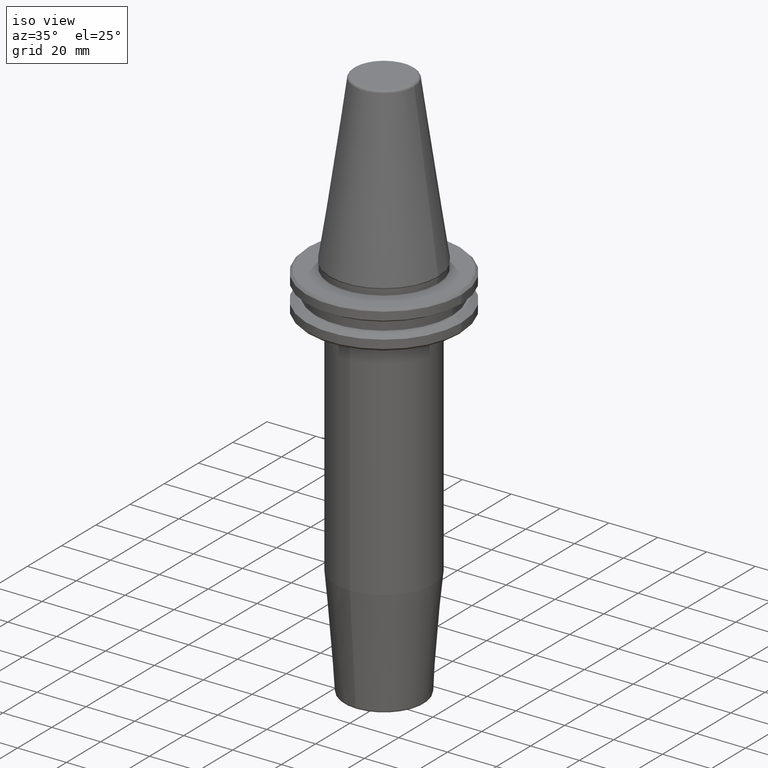
[diagram: clean part render]
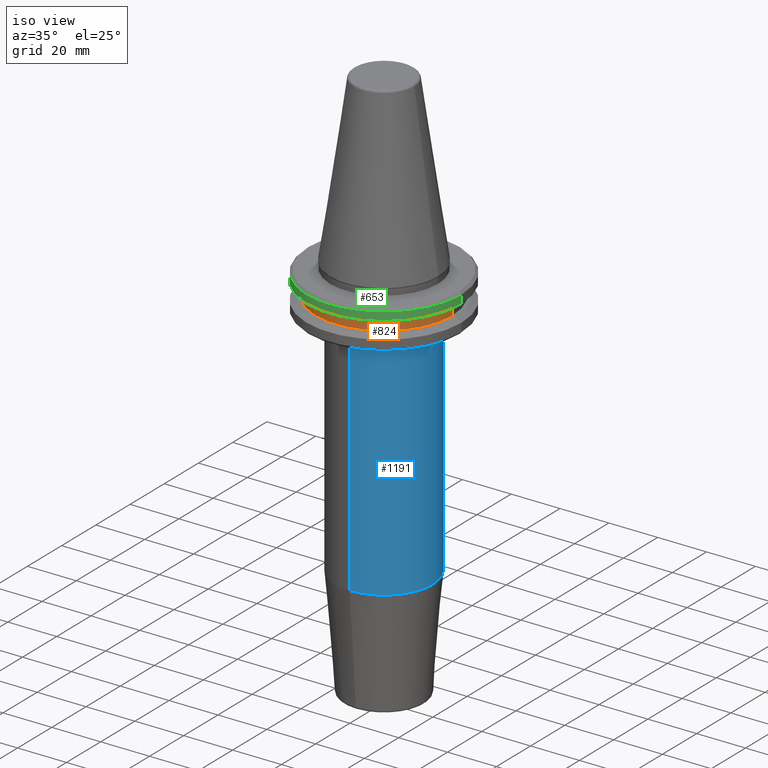
[diagram: same view with three faces highlighted in distinct colors, each labeled with its STEP entity id]
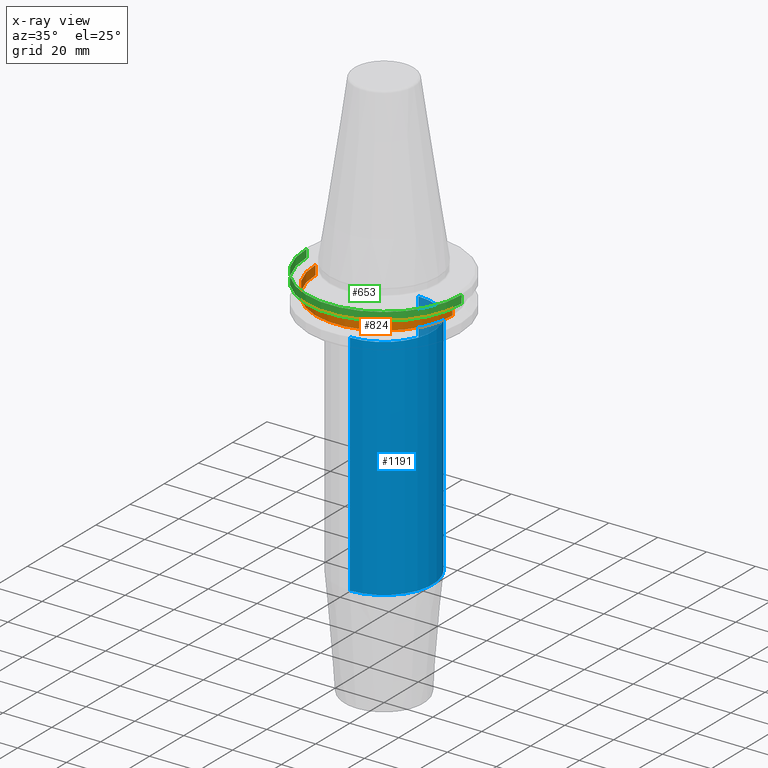
[diagram: x-ray of the same camera — body ghosted, the three highlighted faces saturated]
A machine part, iso view with three faces highlighted in distinct colors.
The next image is the same camera in x-ray (body ghosted, the three faces saturated) — at least one of them is partly hidden behind the body in this view.
Their STEP definitions:

[orange] entity #824 — the highlighted cylindrical surface (partial cylindrical patch) has radius 28 mm, axis along (-0, -0, 1).
#13 = ORIENTED_EDGE ( 'NONE', *, *, #398, .T. ) ;
#14 = ORIENTED_EDGE ( 'NONE', *, *, #101, .T. ) ;
#21 = DIRECTION ( 'NONE',  ( 1.000000000000000000, 0.0000000000000000000, 0.0000000000000000000 ) ) ;
#86 = CIRCLE ( 'NONE', #267, 28.00000000000000000 ) ;
#101 = EDGE_CURVE ( 'NONE', #382, #507, #604, .T. ) ;
#125 = DIRECTION ( 'NONE',  ( -0.0000000000000000000, -0.0000000000000000000, 1.000000000000000000 ) ) ;
#146 = CARTESIAN_POINT ( 'NONE',  ( 0.0000000000000000000, 0.0000000000000000000, -13.00000000000001100 ) ) ;
#149 = FACE_OUTER_BOUND ( 'NONE', #316, .T. ) ;
#208 = CARTESIAN_POINT ( 'NONE',  ( 0.0000000000000000000, 0.0000000000000000000, 113.5216080541959500 ) ) ;
#214 = CARTESIAN_POINT ( 'NONE',  ( -28.00000000000000000, 3.429011037612589300E-015, 113.5216080541959500 ) ) ;
#230 = DIRECTION ( 'NONE',  ( -0.0000000000000000000, -0.0000000000000000000, 1.000000000000000000 ) ) ;
#267 = AXIS2_PLACEMENT_3D ( 'NONE', #1188, #1171, #897 ) ;
#270 = CARTESIAN_POINT ( 'NONE',  ( -28.00000000000000000, 3.429011037612589300E-015, -9.199999999999999300 ) ) ;
#275 = LINE ( 'NONE', #353, #562 ) ;
#289 = ORIENTED_EDGE ( 'NONE', *, *, #819, .F. ) ;
#316 = EDGE_LOOP ( 'NONE', ( #289, #14, #13, #455 ) ) ;
#353 = CARTESIAN_POINT ( 'NONE',  ( 28.00000000000000000, 0.0000000000000000000, 113.5216080541959500 ) ) ;
#382 = VERTEX_POINT ( 'NONE', #1112 ) ;
#398 = EDGE_CURVE ( 'NONE', #507, #1119, #275, .T. ) ;
#455 = ORIENTED_EDGE ( 'NONE', *, *, #844, .F. ) ;
#466 = CARTESIAN_POINT ( 'NONE',  ( 28.00000000000000000, 0.0000000000000000000, -9.199999999999999300 ) ) ;
#467 = DIRECTION ( 'NONE',  ( 1.000000000000000000, 0.0000000000000000000, 0.0000000000000000000 ) ) ;
#507 = VERTEX_POINT ( 'NONE', #960 ) ;
#562 = VECTOR ( 'NONE', #751, 1000.000000000000000 ) ;
#604 = CIRCLE ( 'NONE', #814, 28.00000000000000000 ) ;
#654 = VECTOR ( 'NONE', #230, 1000.000000000000000 ) ;
#751 = DIRECTION ( 'NONE',  ( -0.0000000000000000000, -0.0000000000000000000, 1.000000000000000000 ) ) ;
#814 = AXIS2_PLACEMENT_3D ( 'NONE', #146, #1043, #467 ) ;
#819 = EDGE_CURVE ( 'NONE', #382, #877, #891, .T. ) ;
#824 = ADVANCED_FACE ( 'NONE', ( #149 ), #1105, .T. ) ;
#844 = EDGE_CURVE ( 'NONE', #877, #1119, #86, .T. ) ;
#877 = VERTEX_POINT ( 'NONE', #270 ) ;
#891 = LINE ( 'NONE', #214, #654 ) ;
#897 = DIRECTION ( 'NONE',  ( 1.000000000000000000, 0.0000000000000000000, 0.0000000000000000000 ) ) ;
#960 = CARTESIAN_POINT ( 'NONE',  ( 28.00000000000000000, 0.0000000000000000000, -13.00000000000001100 ) ) ;
#982 = AXIS2_PLACEMENT_3D ( 'NONE', #208, #125, #21 ) ;
#1043 = DIRECTION ( 'NONE',  ( -0.0000000000000000000, -0.0000000000000000000, 1.000000000000000000 ) ) ;
#1105 = CYLINDRICAL_SURFACE ( 'NONE', #982, 28.00000000000000000 ) ;
#1112 = CARTESIAN_POINT ( 'NONE',  ( -28.00000000000000000, 3.429011037612589300E-015, -13.00000000000001100 ) ) ;
#1119 = VERTEX_POINT ( 'NONE', #466 ) ;
#1171 = DIRECTION ( 'NONE',  ( -0.0000000000000000000, -0.0000000000000000000, 1.000000000000000000 ) ) ;
#1188 = CARTESIAN_POINT ( 'NONE',  ( 0.0000000000000000000, 0.0000000000000000000, -9.199999999999999300 ) ) ;

[blue] entity #1191 — the highlighted cylindrical surface (partial cylindrical patch) has radius 20 mm, axis along (-0, 0, -1).
#7 = CIRCLE ( 'NONE', #1054, 20.00000000000000700 ) ;
#39 = CARTESIAN_POINT ( 'NONE',  ( 0.0000000000000000000, 20.00000000000001100, -160.0000000000000000 ) ) ;
#46 = DIRECTION ( 'NONE',  ( 0.0000000000000000000, 1.000000000000000000, 1.734723475976805900E-016 ) ) ;
#82 = EDGE_CURVE ( 'NONE', #831, #1113, #104, .T. ) ;
#104 = CIRCLE ( 'NONE', #783, 20.00000000000001400 ) ;
#111 = CARTESIAN_POINT ( 'NONE',  ( 0.0000000000000000000, 19.99999999999999600, -20.98284271247460400 ) ) ;
#159 = CARTESIAN_POINT ( 'NONE',  ( 2.449293598294707700E-015, 20.00000000000000400, -114.6067425191115800 ) ) ;
#160 = EDGE_CURVE ( 'NONE', #808, #812, #7, .T. ) ;
#162 = FACE_OUTER_BOUND ( 'NONE', #1078, .T. ) ;
#164 = DIRECTION ( 'NONE',  ( -0.0000000000000000000, 1.256330602389183300E-016, -1.000000000000000000 ) ) ;
#262 = CARTESIAN_POINT ( 'NONE',  ( 0.0000000000000000000, -1.701835490922485000E-014, -20.98284271247460700 ) ) ;
#266 = DIRECTION ( 'NONE',  ( -0.0000000000000000000, 1.256330602389183300E-016, -1.000000000000000000 ) ) ;
#381 = ORIENTED_EDGE ( 'NONE', *, *, #1057, .T. ) ;
#384 = EDGE_CURVE ( 'NONE', #831, #808, #801, .T. ) ;
#450 = DIRECTION ( 'NONE',  ( -0.0000000000000000000, 1.256330602389183300E-016, -1.000000000000000000 ) ) ;
#529 = CARTESIAN_POINT ( 'NONE',  ( 0.0000000000000000000, -20.00000000000001400, -114.6067425191115800 ) ) ;
#537 = VECTOR ( 'NONE', #450, 1000.000000000000000 ) ;
#558 = LINE ( 'NONE', #1151, #1256 ) ;
#571 = ORIENTED_EDGE ( 'NONE', *, *, #384, .F. ) ;
#591 = ORIENTED_EDGE ( 'NONE', *, *, #160, .F. ) ;
#685 = ORIENTED_EDGE ( 'NONE', *, *, #82, .T. ) ;
#702 = DIRECTION ( 'NONE',  ( -0.0000000000000000000, 1.256330602389183300E-016, -1.000000000000000000 ) ) ;
#778 = CARTESIAN_POINT ( 'NONE',  ( 0.0000000000000000000, -5.256097865015172100E-015, -114.6067425191115800 ) ) ;
#783 = AXIS2_PLACEMENT_3D ( 'NONE', #262, #266, #46 ) ;
#801 = LINE ( 'NONE', #39, #537 ) ;
#808 = VERTEX_POINT ( 'NONE', #159 ) ;
#812 = VERTEX_POINT ( 'NONE', #529 ) ;
#813 = CARTESIAN_POINT ( 'NONE',  ( 2.449293598294709300E-015, -20.00000000000003600, -20.98284271247461100 ) ) ;
#831 = VERTEX_POINT ( 'NONE', #111 ) ;
#870 = DIRECTION ( 'NONE',  ( 0.0000000000000000000, 1.000000000000000000, 0.0000000000000000000 ) ) ;
#1024 = DIRECTION ( 'NONE',  ( -0.0000000000000000000, 1.256330602389183300E-016, -1.000000000000000000 ) ) ;
#1054 = AXIS2_PLACEMENT_3D ( 'NONE', #778, #164, #870 ) ;
#1057 = EDGE_CURVE ( 'NONE', #1113, #812, #558, .T. ) ;
#1078 = EDGE_LOOP ( 'NONE', ( #685, #381, #591, #571 ) ) ;
#1113 = VERTEX_POINT ( 'NONE', #813 ) ;
#1146 = CYLINDRICAL_SURFACE ( 'NONE', #1249, 20.00000000000001100 ) ;
#1151 = CARTESIAN_POINT ( 'NONE',  ( 2.449293598294708100E-015, -20.00000000000001100, -160.0000000000000000 ) ) ;
#1191 = ADVANCED_FACE ( 'NONE', ( #162 ), #1146, .T. ) ;
#1222 = CARTESIAN_POINT ( 'NONE',  ( 0.0000000000000000000, 4.467959865220142400E-016, -160.0000000000000000 ) ) ;
#1225 = DIRECTION ( 'NONE',  ( 0.0000000000000000000, 1.000000000000000000, 0.0000000000000000000 ) ) ;
#1249 = AXIS2_PLACEMENT_3D ( 'NONE', #1222, #1024, #1225 ) ;
#1256 = VECTOR ( 'NONE', #702, 1000.000000000000000 ) ;

[green] entity #653 — the highlighted cylindrical surface (partial cylindrical patch) has radius 31.75 mm, axis along (-0, -0, 1).
#11 = EDGE_CURVE ( 'NONE', #847, #526, #731, .T. ) ;
#22 = VECTOR ( 'NONE', #547, 1000.000000000000000 ) ;
#41 = DIRECTION ( 'NONE',  ( 1.000000000000000000, 0.0000000000000000000, 0.0000000000000000000 ) ) ;
#178 = DIRECTION ( 'NONE',  ( -0.0000000000000000000, -0.0000000000000000000, 1.000000000000000000 ) ) ;
#245 = CARTESIAN_POINT ( 'NONE',  ( 0.0000000000000000000, 0.0000000000000000000, -7.578163357943284800 ) ) ;
#250 = DIRECTION ( 'NONE',  ( -0.0000000000000000000, -0.0000000000000000000, 1.000000000000000000 ) ) ;
#256 = DIRECTION ( 'NONE',  ( 1.000000000000000000, 0.0000000000000000000, 0.0000000000000000000 ) ) ;
#258 = CARTESIAN_POINT ( 'NONE',  ( 31.75000000000000000, 0.0000000000000000000, 113.5216080541959500 ) ) ;
#302 = LINE ( 'NONE', #258, #22 ) ;
#320 = CARTESIAN_POINT ( 'NONE',  ( -31.75000000000000000, 3.888253587292846500E-015, 113.5216080541959500 ) ) ;
#341 = CARTESIAN_POINT ( 'NONE',  ( 0.0000000000000000000, 0.0000000000000000000, -4.365685424949250000 ) ) ;
#350 = FACE_OUTER_BOUND ( 'NONE', #1204, .T. ) ;
#368 = EDGE_CURVE ( 'NONE', #715, #893, #302, .T. ) ;
#394 = CARTESIAN_POINT ( 'NONE',  ( -31.75000000000000000, 3.888253587292846500E-015, -7.578163357943284800 ) ) ;
#417 = AXIS2_PLACEMENT_3D ( 'NONE', #341, #746, #41 ) ;
#526 = VERTEX_POINT ( 'NONE', #570 ) ;
#528 = ORIENTED_EDGE ( 'NONE', *, *, #368, .T. ) ;
#547 = DIRECTION ( 'NONE',  ( -0.0000000000000000000, -0.0000000000000000000, 1.000000000000000000 ) ) ;
#570 = CARTESIAN_POINT ( 'NONE',  ( -31.75000000000000000, 3.888253587292846500E-015, -4.365685424949250000 ) ) ;
#653 = ADVANCED_FACE ( 'NONE', ( #350 ), #1217, .T. ) ;
#708 = EDGE_CURVE ( 'NONE', #847, #715, #978, .T. ) ;
#715 = VERTEX_POINT ( 'NONE', #833 ) ;
#730 = CARTESIAN_POINT ( 'NONE',  ( 0.0000000000000000000, 0.0000000000000000000, 113.5216080541959500 ) ) ;
#731 = LINE ( 'NONE', #320, #1200 ) ;
#746 = DIRECTION ( 'NONE',  ( -0.0000000000000000000, -0.0000000000000000000, 1.000000000000000000 ) ) ;
#759 = CARTESIAN_POINT ( 'NONE',  ( 31.75000000000000000, 0.0000000000000000000, -4.365685424949250000 ) ) ;
#791 = ORIENTED_EDGE ( 'NONE', *, *, #708, .T. ) ;
#833 = CARTESIAN_POINT ( 'NONE',  ( 31.75000000000000000, 0.0000000000000000000, -7.578163357943284800 ) ) ;
#847 = VERTEX_POINT ( 'NONE', #394 ) ;
#893 = VERTEX_POINT ( 'NONE', #759 ) ;
#925 = AXIS2_PLACEMENT_3D ( 'NONE', #245, #178, #256 ) ;
#936 = DIRECTION ( 'NONE',  ( -0.0000000000000000000, -0.0000000000000000000, 1.000000000000000000 ) ) ;
#937 = DIRECTION ( 'NONE',  ( 1.000000000000000000, 0.0000000000000000000, 0.0000000000000000000 ) ) ;
#963 = CIRCLE ( 'NONE', #417, 31.75000000000000000 ) ;
#978 = CIRCLE ( 'NONE', #925, 31.75000000000000000 ) ;
#1015 = ORIENTED_EDGE ( 'NONE', *, *, #11, .F. ) ;
#1124 = EDGE_CURVE ( 'NONE', #526, #893, #963, .T. ) ;
#1195 = AXIS2_PLACEMENT_3D ( 'NONE', #730, #250, #937 ) ;
#1200 = VECTOR ( 'NONE', #936, 1000.000000000000000 ) ;
#1204 = EDGE_LOOP ( 'NONE', ( #1015, #791, #528, #1250 ) ) ;
#1217 = CYLINDRICAL_SURFACE ( 'NONE', #1195, 31.75000000000000000 ) ;
#1250 = ORIENTED_EDGE ( 'NONE', *, *, #1124, .F. ) ;